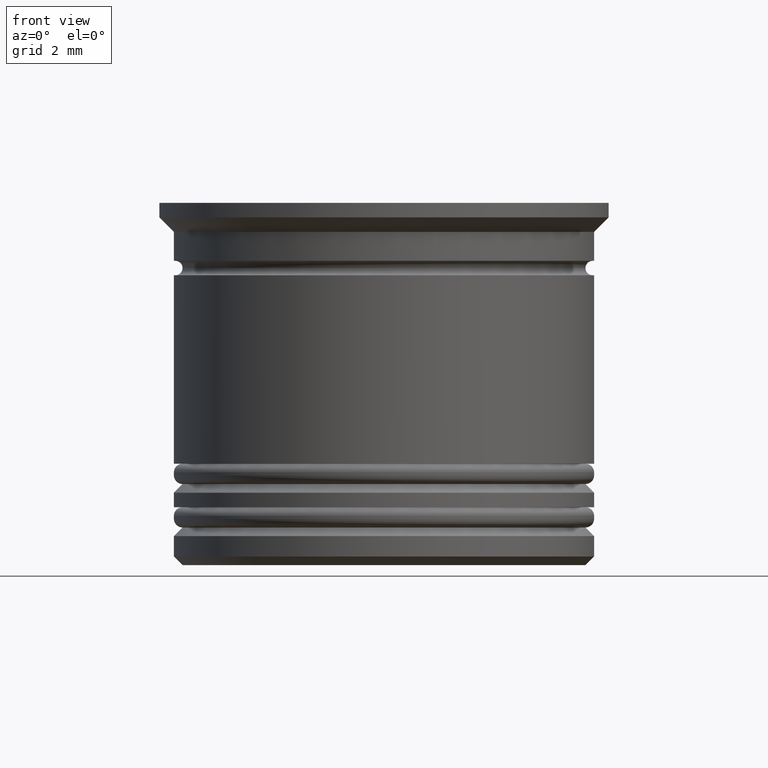
[diagram: clean part render]
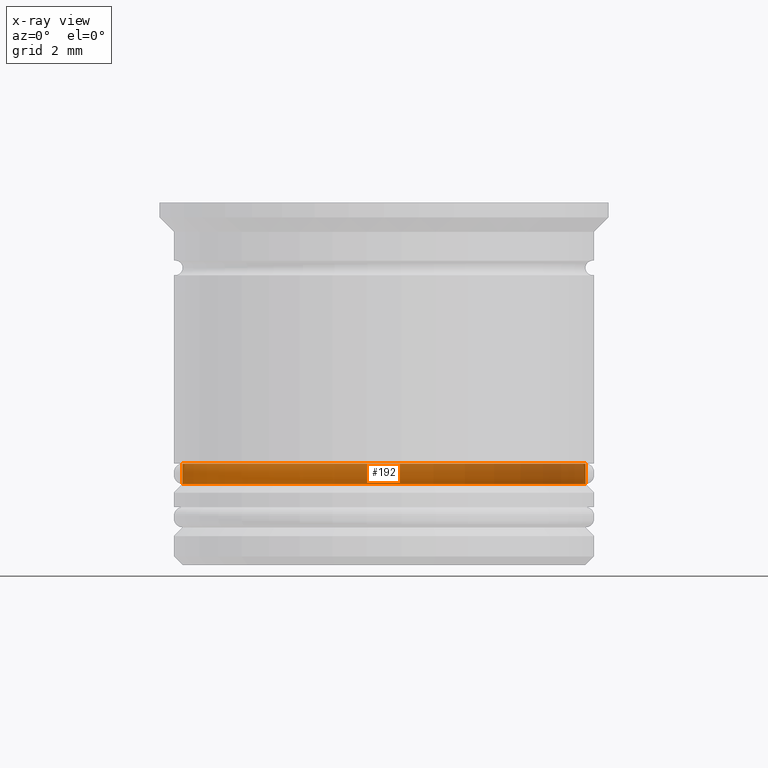
[diagram: x-ray — body ghosted, one internal face saturated and labeled with its STEP entity id]
A machine part, front view, then the same camera in x-ray: the body is ghosted and one INTERNAL B-rep face — a face not visible from any outside direction — is saturated and labeled: STEP entity #192.
In plain terms, the highlighted cylindrical surface (partial cylindrical patch) has radius 6.95 mm, axis along (-0, -0, 1).
Its self-contained STEP definition (entity closure, byte-faithful):
#70 = VERTEX_POINT ( 'NONE', #1142 ) ;
#103 = DIRECTION ( 'NONE',  ( -0.000000000000000000, -0.000000000000000000, 1.000000000000000000 ) ) ;
#128 = DIRECTION ( 'NONE',  ( -0.000000000000000000, -0.000000000000000000, 1.000000000000000000 ) ) ;
#192 = ADVANCED_FACE ( 'NONE', ( #1191 ), #1810, .T. ) ;
#263 = DIRECTION ( 'NONE',  ( -0.000000000000000000, -0.000000000000000000, 1.000000000000000000 ) ) ;
#278 = ORIENTED_EDGE ( 'NONE', *, *, #940, .F. ) ;
#321 = CARTESIAN_POINT ( 'NONE',  ( 6.950000000000000178, 0.000000000000000000, 0.000000000000000000 ) ) ;
#388 = CARTESIAN_POINT ( 'NONE',  ( -6.950000000000000178, 8.511295254074105418E-16, -9.000000000000001776 ) ) ;
#457 = DIRECTION ( 'NONE',  ( -0.000000000000000000, -0.000000000000000000, 1.000000000000000000 ) ) ;
#479 = ORIENTED_EDGE ( 'NONE', *, *, #1109, .F. ) ;
#532 = ORIENTED_EDGE ( 'NONE', *, *, #1154, .T. ) ;
#612 = CARTESIAN_POINT ( 'NONE',  ( 0.000000000000000000, 0.000000000000000000, -9.700000000000006395 ) ) ;
#717 = ORIENTED_EDGE ( 'NONE', *, *, #1161, .T. ) ;
#721 = VECTOR ( 'NONE', #457, 1000.000000000000000 ) ;
#845 = CIRCLE ( 'NONE', #1969, 6.950000000000000178 ) ;
#864 = CARTESIAN_POINT ( 'NONE',  ( 6.950000000000000178, 0.000000000000000000, -9.000000000000001776 ) ) ;
#940 = EDGE_CURVE ( 'NONE', #1429, #1770, #845, .T. ) ;
#1058 = CARTESIAN_POINT ( 'NONE',  ( 0.000000000000000000, 0.000000000000000000, 0.000000000000000000 ) ) ;
#1059 = CARTESIAN_POINT ( 'NONE',  ( -6.950000000000000178, 8.511295254074105418E-16, 0.000000000000000000 ) ) ;
#1087 = CARTESIAN_POINT ( 'NONE',  ( 0.000000000000000000, 0.000000000000000000, -9.000000000000001776 ) ) ;
#1106 = CIRCLE ( 'NONE', #1973, 6.950000000000000178 ) ;
#1109 = EDGE_CURVE ( 'NONE', #1582, #1429, #1931, .T. ) ;
#1142 = CARTESIAN_POINT ( 'NONE',  ( -6.950000000000000178, 8.511295254074105418E-16, -9.700000000000006395 ) ) ;
#1154 = EDGE_CURVE ( 'NONE', #70, #1770, #1992, .T. ) ;
#1161 = EDGE_CURVE ( 'NONE', #1582, #70, #1106, .T. ) ;
#1191 = FACE_OUTER_BOUND ( 'NONE', #1522, .T. ) ;
#1407 = DIRECTION ( 'NONE',  ( 1.000000000000000000, 0.000000000000000000, 0.000000000000000000 ) ) ;
#1429 = VERTEX_POINT ( 'NONE', #864 ) ;
#1444 = AXIS2_PLACEMENT_3D ( 'NONE', #1058, #128, #1970 ) ;
#1522 = EDGE_LOOP ( 'NONE', ( #717, #532, #278, #479 ) ) ;
#1537 = DIRECTION ( 'NONE',  ( -0.000000000000000000, -0.000000000000000000, 1.000000000000000000 ) ) ;
#1582 = VERTEX_POINT ( 'NONE', #1850 ) ;
#1683 = DIRECTION ( 'NONE',  ( -1.000000000000000000, 0.000000000000000000, 0.000000000000000000 ) ) ;
#1770 = VERTEX_POINT ( 'NONE', #388 ) ;
#1810 = CYLINDRICAL_SURFACE ( 'NONE', #1444, 6.950000000000000178 ) ;
#1850 = CARTESIAN_POINT ( 'NONE',  ( 6.950000000000000178, 0.000000000000000000, -9.700000000000006395 ) ) ;
#1931 = LINE ( 'NONE', #321, #721 ) ;
#1947 = VECTOR ( 'NONE', #103, 1000.000000000000000 ) ;
#1969 = AXIS2_PLACEMENT_3D ( 'NONE', #1087, #1537, #1407 ) ;
#1970 = DIRECTION ( 'NONE',  ( 1.000000000000000000, 0.000000000000000000, 0.000000000000000000 ) ) ;
#1973 = AXIS2_PLACEMENT_3D ( 'NONE', #612, #263, #1683 ) ;
#1992 = LINE ( 'NONE', #1059, #1947 ) ;